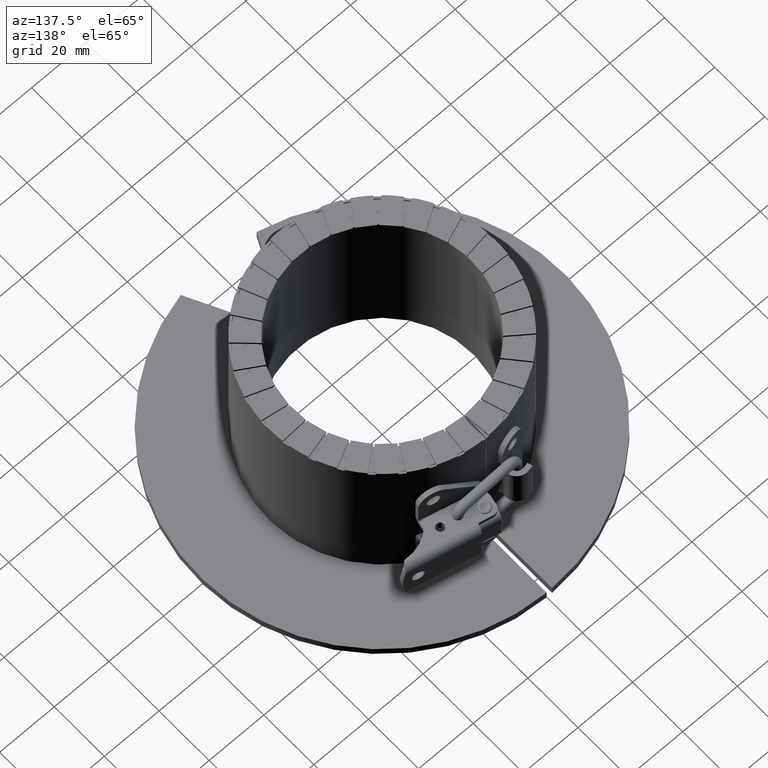
[diagram: clean part render]
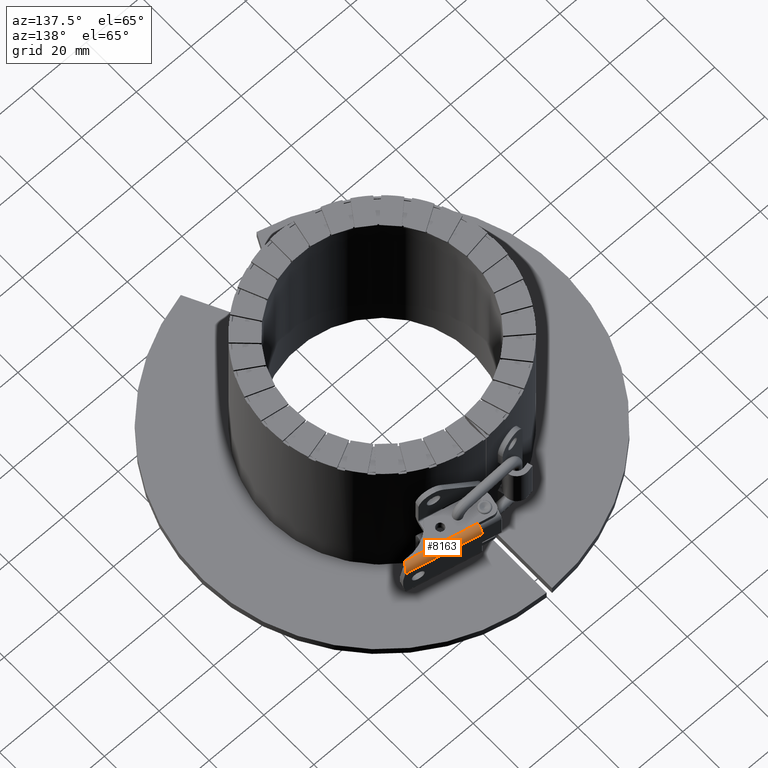
[diagram: same view with one face highlighted and labeled with its STEP entity id]
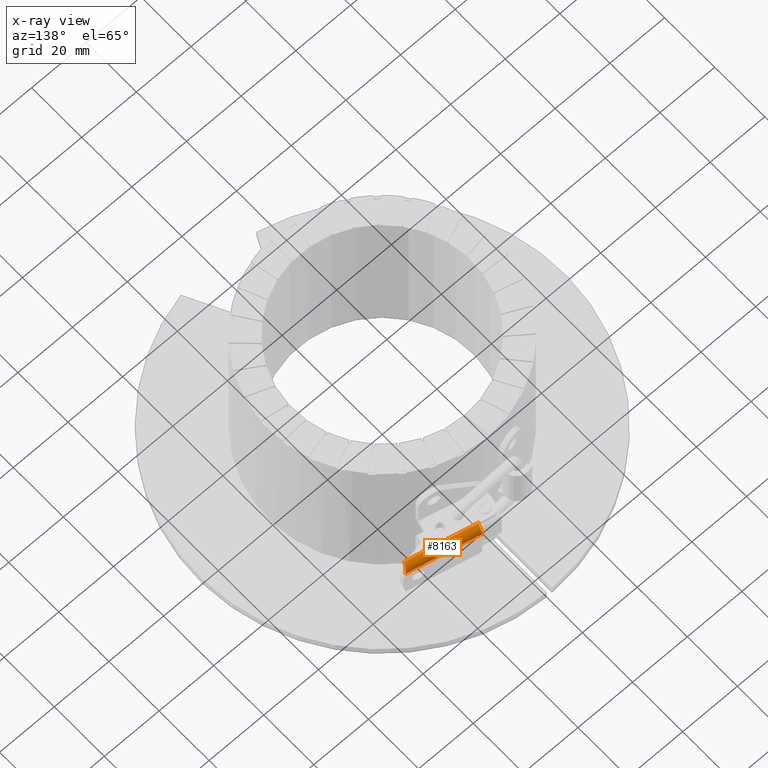
[diagram: x-ray of the same camera — body ghosted, the highlighted face saturated]
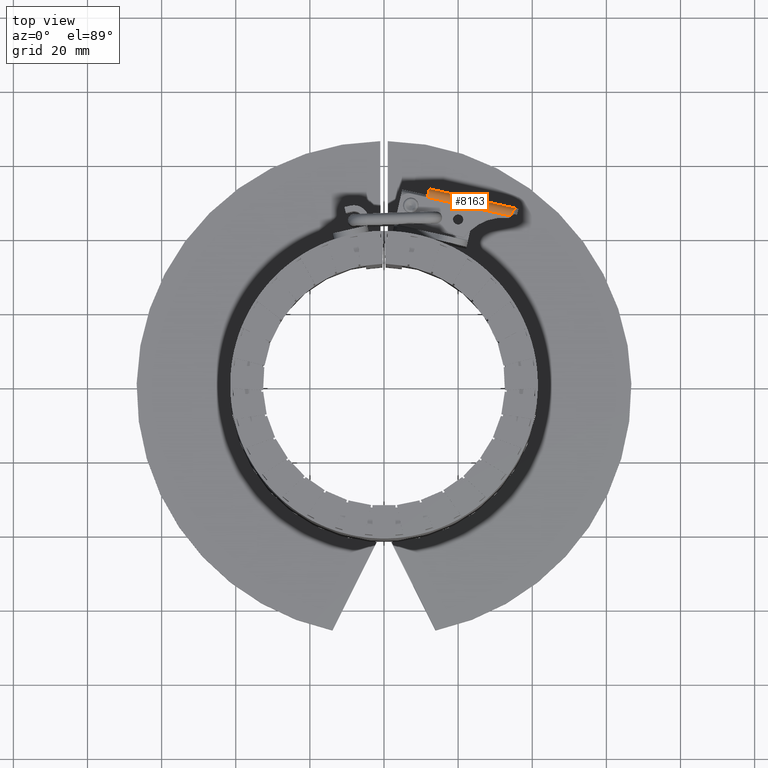
[diagram: same view with one face highlighted and labeled with its STEP entity id]
A machine part, auxiliary view. The second image highlights one B-rep face of the part: STEP entity #8163.
The next image is the same camera in x-ray: the body ghosted, the highlighted face saturated — about 0% of this face is hidden behind the body in this view.
A second angle (top view) of the same face is appended — the face is thin or edge-on in the first view.
In plain terms, the highlighted cylindrical surface (edge-blend (fillet) strip) has radius 2.4 mm, axis along (0.9756, -0.2195, 0).
Its self-contained STEP definition (entity closure, byte-faithful):
#7158=CARTESIAN_POINT('',(11.222084143044109,51.082530455846403,7.850000002622752));
#7159=VERTEX_POINT('',#7158);
#7211=CARTESIAN_POINT('',(34.097120585789973,45.935701442468044,7.850000001669071));
#7212=VERTEX_POINT('',#7211);
#7220=CARTESIAN_POINT('',(34.097120585789973,45.935701442468051,7.850000000000024));
#7221=DIRECTION('',(-0.975610251018905,0.219509995459954,-2.310706E-015));
#7222=VECTOR('',#7221,23.446900459333737);
#7223=LINE('',#7220,#7222);
#7224=EDGE_CURVE('',#7212,#7159,#7223,.T.);
#7972=CARTESIAN_POINT('',(12.236713257919153,53.314240061724902,5.449999999999968));
#7973=VERTEX_POINT('',#7972);
#7980=CARTESIAN_POINT('',(35.555339333066527,48.067604432317282,5.45000000000003));
#7981=VERTEX_POINT('',#7980);
#7982=CARTESIAN_POINT('',(35.55533933270015,48.067604430688945,5.450000000000026));
#7983=DIRECTION('',(-0.975610251018905,0.219509995459954,-2.303909E-015));
#7984=VECTOR('',#7983,23.901579601781808);
#7985=LINE('',#7982,#7984);
#7986=EDGE_CURVE('',#7981,#7973,#7985,.T.);
#8107=CARTESIAN_POINT('',(-10.479023038003007,55.96522816613863,5.449999999999919));
#8108=DIRECTION('',(0.975610251018905,-0.219509995459954,2.315665E-015));
#8109=DIRECTION('',(0.0,0.0,-1.0));
#8110=AXIS2_PLACEMENT_3D('',#8107,#8108,#8109);
#8111=CYLINDRICAL_SURFACE('',#8110,2.400000003814962);
#8112=ORIENTED_EDGE('',*,*,#7986,.T.);
#8113=CARTESIAN_POINT('',(11.819644266283538,51.460580583625898,7.797338922761621));
#8114=VERTEX_POINT('',#8113);
#8115=CARTESIAN_POINT('',(11.709889268553567,50.972775458116438,5.449999999999968));
#8116=DIRECTION('',(-0.975610251018905,0.219509995459954,0.0));
#8117=DIRECTION('',(0.0,0.0,1.0));
#8118=AXIS2_PLACEMENT_3D('',#8115,#8116,#8117);
#8119=CIRCLE('',#8118,2.400000003814961);
#8120=EDGE_CURVE('',#8114,#7973,#8119,.T.);
#8121=ORIENTED_EDGE('',*,*,#8120,.F.);
#8122=CARTESIAN_POINT('',(11.819644266283543,51.460580583625898,7.797338922761621));
#8123=CARTESIAN_POINT('',(11.806040207105521,51.400117461836231,7.810539970934523));
#8124=CARTESIAN_POINT('',(11.779432020340103,51.337709843839434,7.821921083874126));
#8125=CARTESIAN_POINT('',(11.702748165898601,51.228457505118222,7.837975894833114));
#8126=CARTESIAN_POINT('',(11.652659358925327,51.181642867277461,7.842791218287961));
#8127=CARTESIAN_POINT('',(11.54614012052062,51.114252808731436,7.848239939105111));
#8128=CARTESIAN_POINT('',(11.48285055285751,51.089044484417904,7.849293025841786));
#8129=CARTESIAN_POINT('',(11.351455894889625,51.066291187763028,7.850102881000551));
#8130=CARTESIAN_POINT('',(11.283351854248277,51.06874536595604,7.850000003814928));
#8131=CARTESIAN_POINT('',(11.222084143044114,51.08253045584641,7.850000003814928));
#8132=B_SPLINE_CURVE_WITH_KNOTS('',3,(#8122,#8123,#8124,#8125,#8126,#8127,#8128,#8129,#8130,#8131),.UNSPECIFIED.,.F.,.U.,(4,2,2,2,4),(-0.228665174775961,-0.209655665376767,-0.190646155977574,-0.171806344339623,-0.152966532701672),.UNSPECIFIED.);
#8133=EDGE_CURVE('',#8114,#7159,#8132,.T.);
#8134=ORIENTED_EDGE('',*,*,#8133,.T.);
#8135=ORIENTED_EDGE('',*,*,#7224,.F.);
#8136=CARTESIAN_POINT('',(34.159816665037127,46.038312899887131,7.847297096064936));
#8137=VERTEX_POINT('',#8136);
#8138=CARTESIAN_POINT('',(34.118016842378196,45.940554312721858,5.8427046380227));
#8139=DIRECTION('',(-0.853386781223289,0.521222485815623,-0.007623772920118));
#8140=DIRECTION('',(0.52125221206611,0.853106762098133,-0.022471846355514));
#8141=AXIS2_PLACEMENT_3D('',#8138,#8139,#8140);
#8142=ELLIPSE('',#8141,2.317777314122933,2.007184720225559);
#8143=EDGE_CURVE('',#7212,#8137,#8142,.T.);
#8144=ORIENTED_EDGE('',*,*,#8143,.T.);
#8145=CARTESIAN_POINT('',(34.15981666503712,46.038312899887124,7.847297096064936));
#8146=CARTESIAN_POINT('',(34.339267944248839,46.37069062610945,7.830023190539728));
#8147=CARTESIAN_POINT('',(34.507952644165918,46.684574847577409,7.729935572731246));
#8148=CARTESIAN_POINT('',(34.659969173827776,46.953735994988705,7.574348469607268));
#8149=CARTESIAN_POINT('',(34.81198570348964,47.222897142400001,7.418761366483291));
#8150=CARTESIAN_POINT('',(34.947383562599917,47.447555216753663,7.208361861249428));
#8151=CARTESIAN_POINT('',(35.06429420536552,47.619405482648311,6.972887307073674));
#8152=CARTESIAN_POINT('',(35.181204848131117,47.791255748542945,6.73741275289792));
#8153=CARTESIAN_POINT('',(35.279718440756611,47.910698948884622,6.477216178585743));
#8154=CARTESIAN_POINT('',(35.360898981974216,47.982464016713607,6.216659188203351));
#8155=CARTESIAN_POINT('',(35.442079523191822,48.054229084542584,5.956102197820963));
#8156=CARTESIAN_POINT('',(35.506013975330063,48.078702523165958,5.695260380546574));
#8157=CARTESIAN_POINT('',(35.55533933353756,48.06760443441086,5.450000000000026));
#8158=B_SPLINE_CURVE_WITH_KNOTS('',3,(#8145,#8146,#8147,#8148,#8149,#8150,#8151,#8152,#8153,#8154,#8155,#8156,#8157),.UNSPECIFIED.,.F.,.U.,(4,3,3,3,4),(0.0,0.25,0.5,0.75,1.0),.UNSPECIFIED.);
#8159=EDGE_CURVE('',#8137,#7981,#8158,.T.);
#8160=ORIENTED_EDGE('',*,*,#8159,.T.);
#8161=EDGE_LOOP('',(#8112,#8121,#8134,#8135,#8144,#8160));
#8162=FACE_OUTER_BOUND('',#8161,.T.);
#8163=ADVANCED_FACE('',(#8162),#8111,.T.);